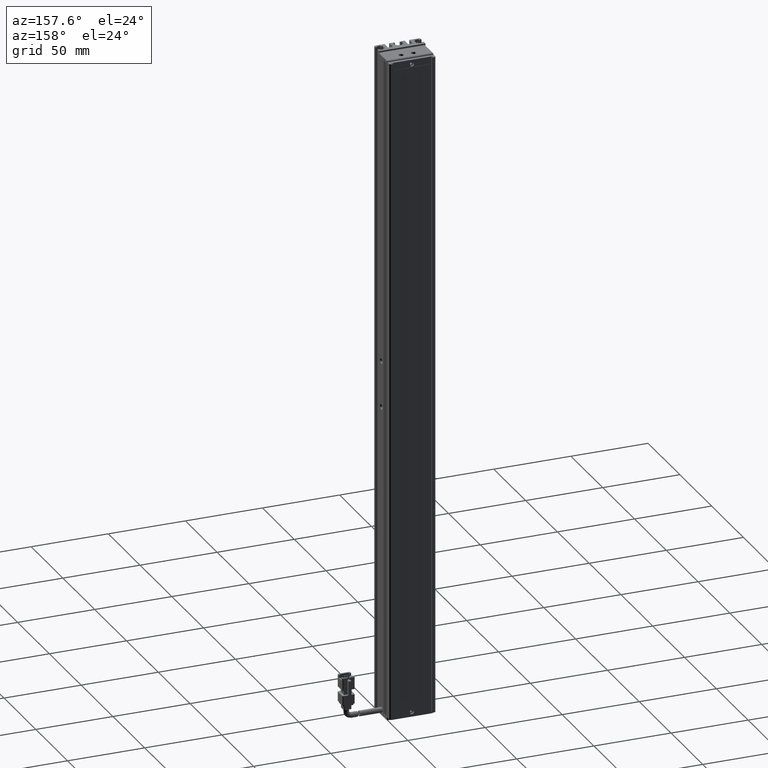
[diagram: clean part render]
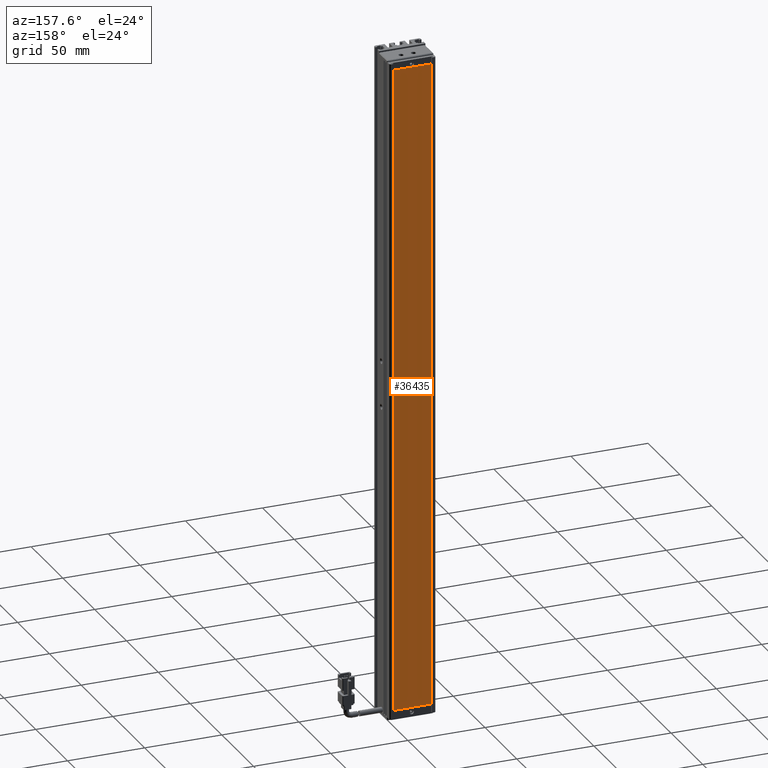
[diagram: same view with one face highlighted and labeled with its STEP entity id]
A machine part, auxiliary view. The second image highlights one B-rep face of the part: STEP entity #36435.
In plain terms, the highlighted planar face has unit normal (0, 1, 0).
Its self-contained STEP definition (entity closure, byte-faithful):
#1334 = DIRECTION ( 'NONE',  ( 0.0000000000000000000, 0.0000000000000000000, -1.000000000000000000 ) ) ;
#1966 = CARTESIAN_POINT ( 'NONE',  ( 53.32537974683541600, 34.29594479660387000, 95.14999999999993500 ) ) ;
#3685 = CARTESIAN_POINT ( 'NONE',  ( 53.32537974683541600, 34.29594479660387000, -324.8500000000000800 ) ) ;
#6895 = VERTEX_POINT ( 'NONE', #1966 ) ;
#8287 = VECTOR ( 'NONE', #9965, 1000.000000000000000 ) ;
#8521 = ORIENTED_EDGE ( 'NONE', *, *, #11822, .T. ) ;
#9965 = DIRECTION ( 'NONE',  ( -1.000000000000000000, 0.0000000000000000000, 0.0000000000000000000 ) ) ;
#11822 = EDGE_CURVE ( 'NONE', #59364, #12262, #13813, .T. ) ;
#12262 = VERTEX_POINT ( 'NONE', #62233 ) ;
#13813 = LINE ( 'NONE', #57493, #77113 ) ;
#13820 = CARTESIAN_POINT ( 'NONE',  ( 53.32537974683541600, 34.29594479660387000, 95.14999999999993500 ) ) ;
#15264 = CARTESIAN_POINT ( 'NONE',  ( 28.52537974683541600, 34.29594479660387000, 95.14999999999993500 ) ) ;
#16603 = LINE ( 'NONE', #13820, #31085 ) ;
#17890 = CARTESIAN_POINT ( 'NONE',  ( 0.0000000000000000000, 34.29594479660387000, 0.0000000000000000000 ) ) ;
#18576 = ORIENTED_EDGE ( 'NONE', *, *, #33290, .T. ) ;
#19126 = AXIS2_PLACEMENT_3D ( 'NONE', #17890, #60782, #24099 ) ;
#21457 = DIRECTION ( 'NONE',  ( 1.000000000000000000, 0.0000000000000000000, 0.0000000000000000000 ) ) ;
#24099 = DIRECTION ( 'NONE',  ( 0.0000000000000000000, -0.0000000000000000000, 1.000000000000000000 ) ) ;
#31085 = VECTOR ( 'NONE', #1334, 1000.000000000000000 ) ;
#33290 = EDGE_CURVE ( 'NONE', #12262, #6895, #39902, .T. ) ;
#35962 = PLANE ( 'NONE',  #19126 ) ;
#36435 = ADVANCED_FACE ( 'NONE', ( #45366 ), #35962, .T. ) ;
#39902 = LINE ( 'NONE', #15264, #70495 ) ;
#43864 = ORIENTED_EDGE ( 'NONE', *, *, #52217, .T. ) ;
#45366 = FACE_OUTER_BOUND ( 'NONE', #66193, .T. ) ;
#48538 = EDGE_CURVE ( 'NONE', #6895, #77530, #16603, .T. ) ;
#52217 = EDGE_CURVE ( 'NONE', #77530, #59364, #57294, .T. ) ;
#55587 = ORIENTED_EDGE ( 'NONE', *, *, #48538, .T. ) ;
#57294 = LINE ( 'NONE', #3685, #8287 ) ;
#57493 = CARTESIAN_POINT ( 'NONE',  ( 28.52537974683541600, 34.29594479660387000, -324.8500000000000800 ) ) ;
#59364 = VERTEX_POINT ( 'NONE', #75776 ) ;
#60782 = DIRECTION ( 'NONE',  ( 0.0000000000000000000, 1.000000000000000000, 0.0000000000000000000 ) ) ;
#62233 = CARTESIAN_POINT ( 'NONE',  ( 28.52537974683541600, 34.29594479660387000, 95.14999999999993500 ) ) ;
#63655 = DIRECTION ( 'NONE',  ( 0.0000000000000000000, 0.0000000000000000000, 1.000000000000000000 ) ) ;
#66193 = EDGE_LOOP ( 'NONE', ( #55587, #43864, #8521, #18576 ) ) ;
#70495 = VECTOR ( 'NONE', #21457, 1000.000000000000000 ) ;
#75776 = CARTESIAN_POINT ( 'NONE',  ( 28.52537974683541600, 34.29594479660387000, -324.8500000000000800 ) ) ;
#77113 = VECTOR ( 'NONE', #63655, 1000.000000000000000 ) ;
#77530 = VERTEX_POINT ( 'NONE', #77672 ) ;
#77672 = CARTESIAN_POINT ( 'NONE',  ( 53.32537974683541600, 34.29594479660387000, -324.8500000000000800 ) ) ;